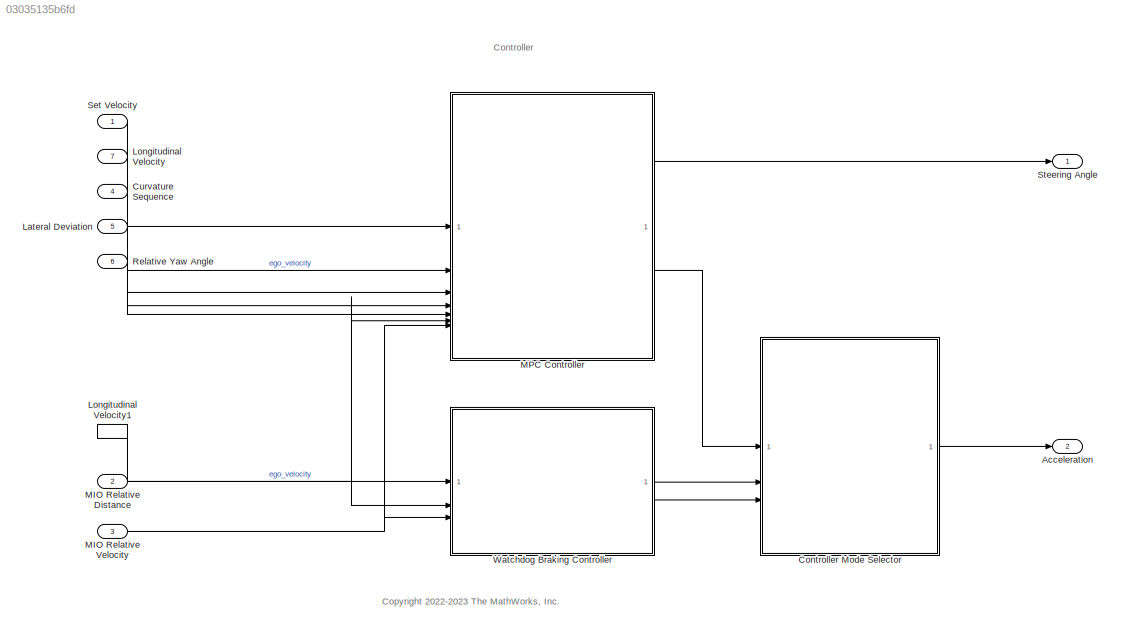
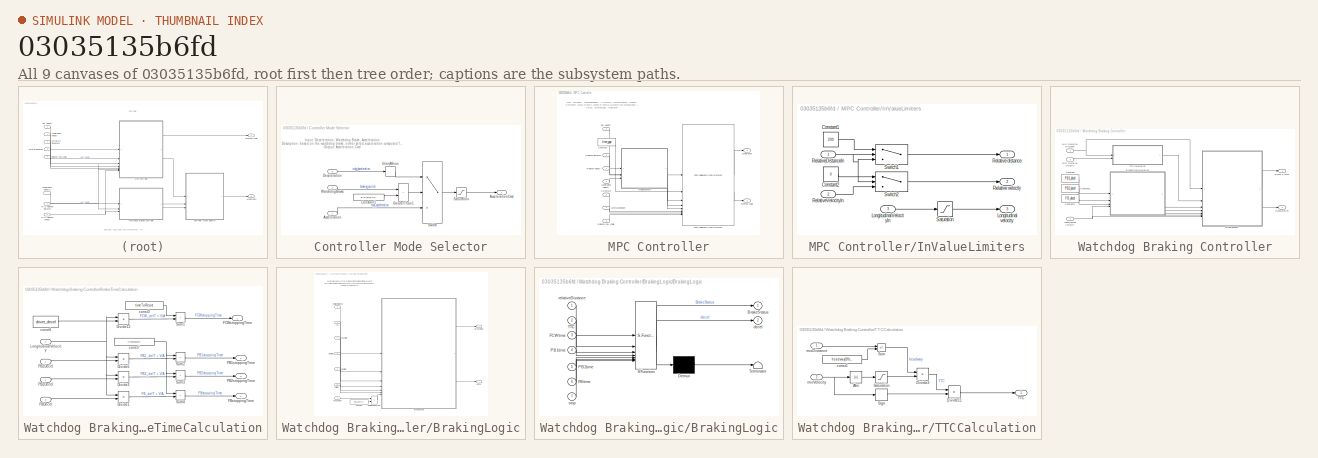
[diagram: thumbnail index - all 9 canvases of the model, root first then tree order]
MODEL slx_03035135b6fd
KIND model
CONFIG AbsTol = auto
CONFIG EnableMultiTasking = off
CONFIG FixedStep = auto
CONFIG MaxStep = auto
CONFIG MinStep = auto
CONFIG RelTol = 1e-3
CONFIG SampleTimeConstraint = Unconstrained
CONFIG SolverName = ode23tb
CONFIG StartTime = 0.0
CONFIG StopTime = inf
BLOCK [Outport] Acceleration
  Port = 2
  PortDimensions = 1
  SampleTime = Ts
  SamplingMode = Sample based
  SignalType = real
  VectorParamsAs1DForOutWhenUnconnected = off
BLOCK [SubSystem] Controller Mode Selector
BLOCK [Inport] Controller Mode Selector/Acceleration
BLOCK [Outport] Controller Mode Selector/AccelerationCmd
BLOCK [Constant] Controller Mode Selector/Constant1
  OutDataTypeStr = Enum: BrStatus
  Value = BrStatus.NoBrake
BLOCK [Inport] Controller Mode Selector/Deceleration
  Port = 3
BLOCK [RelationalOperator] Controller Mode Selector/GreaterThan1
  InputSameDT = off
  Operator = >
  RndMeth = Simplest
BLOCK [Saturate] Controller Mode Selector/Saturation
  AttributesFormatString = %<UpperLimit>\n%<LowerLimit>
  LowerLimit = max_dc
  UpperLimit = max_ac
BLOCK [Switch] Controller Mode Selector/Switch
  Criteria = u2 ~= 0
  InputSameDT = off
  SaturateOnIntegerOverflow = off
BLOCK [UnaryMinus] Controller Mode Selector/UnaryMinus
BLOCK [Inport] Controller Mode Selector/WatchdogBrake
  Port = 2
BLOCK [Inport] Curvature Sequence
  Port = 4
  PortDimensions = [PredictionHorizon 1]
BLOCK [Inport] Lateral Deviation
  Port = 5
BLOCK [Inport] Longitudinal Velocity
  Port = 7
  SampleTime = Ts
BLOCK [InportShadow] Longitudinal Velocity1
  Port = 7
  SampleTime = Ts
BLOCK [Inport] MIO Relative Distance
  Port = 2
BLOCK [Inport] MIO Relative Velocity
  Port = 3
BLOCK [SubSystem] MPC Controller
BLOCK [Outport] MPC Controller/Acceleration
  Port = 2
  VectorParamsAs1DForOutWhenUnconnected = off
BLOCK [Constant] MPC Controller/Constant
  Value = time_gap
BLOCK [Inport] MPC Controller/Curvature
  Port = 3
BLOCK [SubSystem] MPC Controller/InValueLimiters
BLOCK [Constant] MPC Controller/InValueLimiters/Constant1
  Value = 200
BLOCK [Constant] MPC Controller/InValueLimiters/Constant2
  Value = 0
BLOCK [Outport] MPC Controller/InValueLimiters/Longitudinal velocity
  Port = 3
BLOCK [Inport] MPC Controller/InValueLimiters/LongitudinalVelocityIn
  Port = 3
BLOCK [Outport] MPC Controller/InValueLimiters/Relative distance
BLOCK [Outport] MPC Controller/InValueLimiters/Relative velocity
  Port = 2
BLOCK [Inport] MPC Controller/InValueLimiters/RelativeDistanceIn
BLOCK [Inport] MPC Controller/InValueLimiters/RelativeVelocityIn
  Port = 2
BLOCK [Saturate] MPC Controller/InValueLimiters/Saturation
  LowerLimit = 0.00001
  UpperLimit = 100
BLOCK [Switch] MPC Controller/InValueLimiters/Switch1
  Criteria = u2 > Threshold
  InputSameDT = off
  SaturateOnIntegerOverflow = off
  Threshold = 1000
BLOCK [Switch] MPC Controller/InValueLimiters/Switch2
  Criteria = u2 > Threshold
  InputSameDT = off
  SaturateOnIntegerOverflow = off
  Threshold = 1000
BLOCK [Inport] MPC Controller/Lateral deviation
  Port = 4
BLOCK [Inport] MPC Controller/Longitudinal velocity
  Port = 2
BLOCK [Reference] MPC Controller/Path Following Control System  REF=mpcadaslib/Path Following Control System
  SourceBlock = mpcadaslib/Path Following Control System
  SourceType = Path following control (PFC) system
BLOCK [Inport] MPC Controller/Relative distance
  Port = 6
BLOCK [Inport] MPC Controller/Relative velocity
  Port = 7
BLOCK [Inport] MPC Controller/Relative yaw angle
  Port = 5
BLOCK [Inport] MPC Controller/Set velocity
BLOCK [Outport] MPC Controller/Steering Angle
  VectorParamsAs1DForOutWhenUnconnected = off
BLOCK [Inport] Relative Yaw Angle
  Port = 6
BLOCK [Inport] Set Velocity
BLOCK [Outport] Steering Angle
  PortDimensions = 1
  SampleTime = Ts
  SamplingMode = Sample based
  SignalType = real
  VectorParamsAs1DForOutWhenUnconnected = off
BLOCK [SubSystem] Watchdog Braking Controller
BLOCK [Outport] Watchdog Braking Controller/Brake Status
  VectorParamsAs1DForOutWhenUnconnected = off
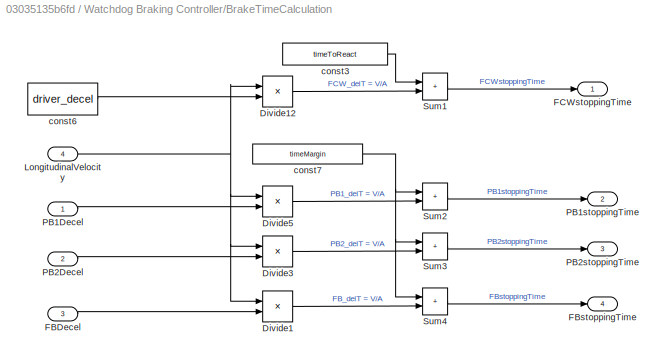
BLOCK [SubSystem] Watchdog Braking Controller/BrakeTimeCalculation
BLOCK [Product] Watchdog Braking Controller/BrakeTimeCalculation/Divide1
  Inputs = */
BLOCK [Product] Watchdog Braking Controller/BrakeTimeCalculation/Divide12
  Inputs = */
BLOCK [Product] Watchdog Braking Controller/BrakeTimeCalculation/Divide3
  Inputs = */
BLOCK [Product] Watchdog Braking Controller/BrakeTimeCalculation/Divide5
  Inputs = */
BLOCK [Inport] Watchdog Braking Controller/BrakeTimeCalculation/FBDecel
  Port = 3
BLOCK [Outport] Watchdog Braking Controller/BrakeTimeCalculation/FBstoppingTime
  Port = 4
BLOCK [Outport] Watchdog Braking Controller/BrakeTimeCalculation/FCWstoppingTime
BLOCK [Inport] Watchdog Braking Controller/BrakeTimeCalculation/LongitudinalVelocity
  Port = 4
BLOCK [Inport] Watchdog Braking Controller/BrakeTimeCalculation/PB1Decel
BLOCK [Outport] Watchdog Braking Controller/BrakeTimeCalculation/PB1stoppingTime
  Port = 2
BLOCK [Inport] Watchdog Braking Controller/BrakeTimeCalculation/PB2Decel
  Port = 2
BLOCK [Outport] Watchdog Braking Controller/BrakeTimeCalculation/PB2stoppingTime
  Port = 3
BLOCK [Sum] Watchdog Braking Controller/BrakeTimeCalculation/Sum1
  IconShape = rectangular
BLOCK [Sum] Watchdog Braking Controller/BrakeTimeCalculation/Sum2
  IconShape = rectangular
BLOCK [Sum] Watchdog Braking Controller/BrakeTimeCalculation/Sum3
  IconShape = rectangular
BLOCK [Sum] Watchdog Braking Controller/BrakeTimeCalculation/Sum4
  IconShape = rectangular
BLOCK [Constant] Watchdog Braking Controller/BrakeTimeCalculation/const3
  SampleTime = -1
  Value = timeToReact
BLOCK [Constant] Watchdog Braking Controller/BrakeTimeCalculation/const6
  SampleTime = -1
  Value = driver_decel
BLOCK [Constant] Watchdog Braking Controller/BrakeTimeCalculation/const7
  SampleTime = -1
  Value = timeMargin
BLOCK [SubSystem] Watchdog Braking Controller/BrakingLogic
BLOCK [Outport] Watchdog Braking Controller/BrakingLogic/BrakeStatus
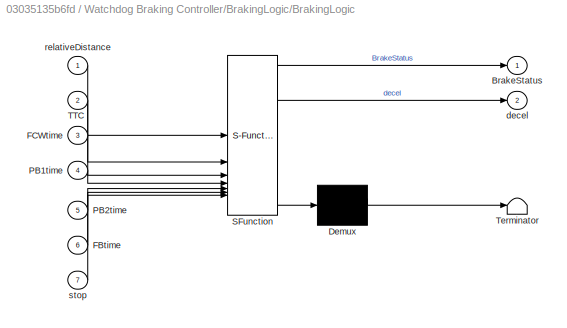
BLOCK [SubSystem] Watchdog Braking Controller/BrakingLogic/BrakingLogic
  ErrorFcn = Stateflow.Translate.translate
  PermitHierarchicalResolution = ExplicitOnly
  SFBlockType = Chart
  TreatAsAtomicUnit = on
BLOCK [Demux] Watchdog Braking Controller/BrakingLogic/BrakingLogic/ Demux 
  Outputs = 1
BLOCK [S-Function] Watchdog Braking Controller/BrakingLogic/BrakingLogic/ SFunction 
  EnableBusSupport = off
  FunctionName = sf_sfun
  PortCounts = [7 3]
  SFcnIsStateOwnerBlock = off
  SFunctionDeploymentMode = off
  Tag = Stateflow S-Function 8
BLOCK [Terminator] Watchdog Braking Controller/BrakingLogic/BrakingLogic/ Terminator 
BLOCK [Outport] Watchdog Braking Controller/BrakingLogic/BrakingLogic/BrakeStatus
  VectorParamsAs1DForOutWhenUnconnected = off
BLOCK [Inport] Watchdog Braking Controller/BrakingLogic/BrakingLogic/FBtime
  Port = 6
BLOCK [Inport] Watchdog Braking Controller/BrakingLogic/BrakingLogic/FCWtime
  Port = 3
BLOCK [Inport] Watchdog Braking Controller/BrakingLogic/BrakingLogic/PB1time
  Port = 4
BLOCK [Inport] Watchdog Braking Controller/BrakingLogic/BrakingLogic/PB2time
  Port = 5
BLOCK [Inport] Watchdog Braking Controller/BrakingLogic/BrakingLogic/TTC
  Port = 2
BLOCK [Outport] Watchdog Braking Controller/BrakingLogic/BrakingLogic/decel
  Port = 2
  VectorParamsAs1DForOutWhenUnconnected = off
BLOCK [Inport] Watchdog Braking Controller/BrakingLogic/BrakingLogic/relativeDistance
BLOCK [Inport] Watchdog Braking Controller/BrakingLogic/BrakingLogic/stop
  Port = 7
BLOCK [Constant] Watchdog Braking Controller/BrakingLogic/Constant
  AttributesFormatString = %<SampleTime>
  SampleTime = Ts
  Value = stopVelThreshold
BLOCK [Inport] Watchdog Braking Controller/BrakingLogic/FBtime
  Port = 6
BLOCK [Inport] Watchdog Braking Controller/BrakingLogic/FCWtime
  Port = 3
BLOCK [Inport] Watchdog Braking Controller/BrakingLogic/PB1time
  Port = 4
BLOCK [Inport] Watchdog Braking Controller/BrakingLogic/PB2time
  Port = 5
BLOCK [RelationalOperator] Watchdog Braking Controller/BrakingLogic/RelationalOperator
  InputSameDT = off
  Operator = <=
  RndMeth = Simplest
BLOCK [Inport] Watchdog Braking Controller/BrakingLogic/TTC
  Port = 2
BLOCK [Outport] Watchdog Braking Controller/BrakingLogic/decel
  Port = 2
BLOCK [Inport] Watchdog Braking Controller/BrakingLogic/longVelocity
  Port = 7
BLOCK [Inport] Watchdog Braking Controller/BrakingLogic/relativeDistance
BLOCK [Constant] Watchdog Braking Controller/Constant
  Value = PB1_decel
BLOCK [Constant] Watchdog Braking Controller/Constant1
  Value = PB2_decel
BLOCK [Constant] Watchdog Braking Controller/Constant2
  Value = FB_decel
BLOCK [Outport] Watchdog Braking Controller/Deceleration
  Port = 2
  VectorParamsAs1DForOutWhenUnconnected = off
BLOCK [Inport] Watchdog Braking Controller/Longitudinal Velocity
BLOCK [Inport] Watchdog Braking Controller/MIO Relative Distance
  Port = 2
BLOCK [Inport] Watchdog Braking Controller/MIO Relative Velocity
  Port = 3
BLOCK [SubSystem] Watchdog Braking Controller/TTCCalculation
BLOCK [Abs] Watchdog Braking Controller/TTCCalculation/Abs
  SaturateOnIntegerOverflow = off
BLOCK [Product] Watchdog Braking Controller/TTCCalculation/Divide11
  Inputs = **
BLOCK [Product] Watchdog Braking Controller/TTCCalculation/Divide3
  Inputs = */
BLOCK [Saturate] Watchdog Braking Controller/TTCCalculation/Saturation
  LowerLimit = 0.01
  UpperLimit = 100
BLOCK [Signum] Watchdog Braking Controller/TTCCalculation/Sign
BLOCK [Sum] Watchdog Braking Controller/TTCCalculation/Sum
  IconShape = rectangular
  Inputs = +-
BLOCK [Outport] Watchdog Braking Controller/TTCCalculation/TTC
  VectorParamsAs1DForOutWhenUnconnected = off
BLOCK [Constant] Watchdog Braking Controller/TTCCalculation/const1
  SampleTime = -1
  Value = headwayOffset
BLOCK [Inport] Watchdog Braking Controller/TTCCalculation/mioDistance
BLOCK [Inport] Watchdog Braking Controller/TTCCalculation/mioVelocity
  Port = 2
ANNOTATION (root): Controller
ANNOTATION (root): <copyright redacted>
ANNOTATION Controller Mode Selector: Input: Deceleration, Watchdog Brake, Acceleration Description: based on the watchdog brake, either select acceleration computed from the controller or the deceleration from the watchdog controller Output: Acceleration Cmd
ANNOTATION MPC Controller: Input: SetVelocity, LongitudinalVelocity, Curvature, LateralDeviation, RelativeYawAngle, RelativeDistanc, RelativeVelocity Description: based on inputs, decide on optimal Accerlation and SteeringAngle to output Output: SteeringAngle, Acceleration
ANNOTATION Watchdog Braking Controller/BrakingLogic: Input: relativeDistance, TTC, FCWtime, PB1time, PB2time, FBtime, longVelocity Description: as time to collision gets shorter, request deceleration and signal the braking status. 4 Levels are identified warning, partial braking 1/2 and full braking. Output: BrakeStatus, decel
LINE Controller Mode Selector/Acceleration:1 -> Controller Mode Selector/Switch:3
LINE Controller Mode Selector/Constant1:1 -> Controller Mode Selector/GreaterThan1:2
LINE Controller Mode Selector/Deceleration:1 -> Controller Mode Selector/UnaryMinus:1
LINE Controller Mode Selector/GreaterThan1:1 -> Controller Mode Selector/Switch:2
LINE Controller Mode Selector/Saturation:1 -> Controller Mode Selector/AccelerationCmd:1
LINE Controller Mode Selector/Switch:1 -> Controller Mode Selector/Saturation:1
LINE Controller Mode Selector/UnaryMinus:1 -> Controller Mode Selector/Switch:1
LINE Controller Mode Selector/WatchdogBrake:1 -> Controller Mode Selector/GreaterThan1:1
LINE Controller Mode Selector:1 -> Acceleration:1
LINE Curvature Sequence:1 -> MPC Controller:3
LINE Lateral Deviation:1 -> MPC Controller:4
LINE Longitudinal Velocity1:1 -> Watchdog Braking Controller:1
LINE Longitudinal Velocity:1 -> MPC Controller:2
NET MIO Relative Distance:1 -> MPC Controller:6, Watchdog Braking Controller:2
NET MIO Relative Velocity:1 -> MPC Controller:7, Watchdog Braking Controller:3
LINE MPC Controller/Constant:1 -> MPC Controller/Path Following Control System:2
LINE MPC Controller/Curvature:1 -> MPC Controller/Path Following Control System:6
LINE MPC Controller/InValueLimiters/Constant1:1 -> MPC Controller/InValueLimiters/Switch1:1
LINE MPC Controller/InValueLimiters/Constant2:1 -> MPC Controller/InValueLimiters/Switch2:1
LINE MPC Controller/InValueLimiters/LongitudinalVelocityIn:1 -> MPC Controller/InValueLimiters/Saturation:1
NET MPC Controller/InValueLimiters/RelativeDistanceIn:1 -> MPC Controller/InValueLimiters/Switch1:2, MPC Controller/InValueLimiters/Switch1:3, MPC Controller/InValueLimiters/Switch2:2
LINE MPC Controller/InValueLimiters/RelativeVelocityIn:1 -> MPC Controller/InValueLimiters/Switch2:3
LINE MPC Controller/InValueLimiters/Saturation:1 -> MPC Controller/InValueLimiters/Longitudinal velocity:1
LINE MPC Controller/InValueLimiters/Switch1:1 -> MPC Controller/InValueLimiters/Relative distance:1
LINE MPC Controller/InValueLimiters/Switch2:1 -> MPC Controller/InValueLimiters/Relative velocity:1
LINE MPC Controller/InValueLimiters:1 -> MPC Controller/Path Following Control System:3
LINE MPC Controller/InValueLimiters:2 -> MPC Controller/Path Following Control System:4
LINE MPC Controller/InValueLimiters:3 -> MPC Controller/Path Following Control System:5
LINE MPC Controller/Lateral deviation:1 -> MPC Controller/Path Following Control System:7
LINE MPC Controller/Longitudinal velocity:1 -> MPC Controller/InValueLimiters:3
LINE MPC Controller/Path Following Control System:1 -> MPC Controller/Acceleration:1
LINE MPC Controller/Path Following Control System:2 -> MPC Controller/Steering Angle:1
LINE MPC Controller/Relative distance:1 -> MPC Controller/InValueLimiters:1
LINE MPC Controller/Relative velocity:1 -> MPC Controller/InValueLimiters:2
LINE MPC Controller/Relative yaw angle:1 -> MPC Controller/Path Following Control System:8
LINE MPC Controller/Set velocity:1 -> MPC Controller/Path Following Control System:1
LINE MPC Controller:1 -> Steering Angle:1
LINE MPC Controller:2 -> Controller Mode Selector:1
LINE Relative Yaw Angle:1 -> MPC Controller:5
LINE Set Velocity:1 -> MPC Controller:1
LINE Watchdog Braking Controller/BrakeTimeCalculation/Divide12:1 -> Watchdog Braking Controller/BrakeTimeCalculation/Sum1:2
LINE Watchdog Braking Controller/BrakeTimeCalculation/Divide1:1 -> Watchdog Braking Controller/BrakeTimeCalculation/Sum4:2
LINE Watchdog Braking Controller/BrakeTimeCalculation/Divide3:1 -> Watchdog Braking Controller/BrakeTimeCalculation/Sum3:2
LINE Watchdog Braking Controller/BrakeTimeCalculation/Divide5:1 -> Watchdog Braking Controller/BrakeTimeCalculation/Sum2:2
LINE Watchdog Braking Controller/BrakeTimeCalculation/FBDecel:1 -> Watchdog Braking Controller/BrakeTimeCalculation/Divide1:2
NET Watchdog Braking Controller/BrakeTimeCalculation/LongitudinalVelocity:1 -> Watchdog Braking Controller/BrakeTimeCalculation/Divide12:1, Watchdog Braking Controller/BrakeTimeCalculation/Divide1:1, Watchdog Braking Controller/BrakeTimeCalculation/Divide3:1, Watchdog Braking Controller/BrakeTimeCalculation/Divide5:1
LINE Watchdog Braking Controller/BrakeTimeCalculation/PB1Decel:1 -> Watchdog Braking Controller/BrakeTimeCalculation/Divide5:2
LINE Watchdog Braking Controller/BrakeTimeCalculation/PB2Decel:1 -> Watchdog Braking Controller/BrakeTimeCalculation/Divide3:2
LINE Watchdog Braking Controller/BrakeTimeCalculation/Sum1:1 -> Watchdog Braking Controller/BrakeTimeCalculation/FCWstoppingTime:1
LINE Watchdog Braking Controller/BrakeTimeCalculation/Sum2:1 -> Watchdog Braking Controller/BrakeTimeCalculation/PB1stoppingTime:1
LINE Watchdog Braking Controller/BrakeTimeCalculation/Sum3:1 -> Watchdog Braking Controller/BrakeTimeCalculation/PB2stoppingTime:1
LINE Watchdog Braking Controller/BrakeTimeCalculation/Sum4:1 -> Watchdog Braking Controller/BrakeTimeCalculation/FBstoppingTime:1
LINE Watchdog Braking Controller/BrakeTimeCalculation/const3:1 -> Watchdog Braking Controller/BrakeTimeCalculation/Sum1:1
LINE Watchdog Braking Controller/BrakeTimeCalculation/const6:1 -> Watchdog Braking Controller/BrakeTimeCalculation/Divide12:2
NET Watchdog Braking Controller/BrakeTimeCalculation/const7:1 -> Watchdog Braking Controller/BrakeTimeCalculation/Sum2:1, Watchdog Braking Controller/BrakeTimeCalculation/Sum3:1, Watchdog Braking Controller/BrakeTimeCalculation/Sum4:1
LINE Watchdog Braking Controller/BrakeTimeCalculation:1 -> Watchdog Braking Controller/BrakingLogic:3
LINE Watchdog Braking Controller/BrakeTimeCalculation:2 -> Watchdog Braking Controller/BrakingLogic:4
LINE Watchdog Braking Controller/BrakeTimeCalculation:3 -> Watchdog Braking Controller/BrakingLogic:5
LINE Watchdog Braking Controller/BrakeTimeCalculation:4 -> Watchdog Braking Controller/BrakingLogic:6
LINE Watchdog Braking Controller/BrakingLogic/BrakingLogic:1 -> Watchdog Braking Controller/BrakingLogic/BrakeStatus:1
LINE Watchdog Braking Controller/BrakingLogic/BrakingLogic:2 -> Watchdog Braking Controller/BrakingLogic/decel:1
LINE Watchdog Braking Controller/BrakingLogic/Constant:1 -> Watchdog Braking Controller/BrakingLogic/RelationalOperator:2
LINE Watchdog Braking Controller/BrakingLogic/FBtime:1 -> Watchdog Braking Controller/BrakingLogic/BrakingLogic:6
LINE Watchdog Braking Controller/BrakingLogic/FCWtime:1 -> Watchdog Braking Controller/BrakingLogic/BrakingLogic:3
LINE Watchdog Braking Controller/BrakingLogic/PB1time:1 -> Watchdog Braking Controller/BrakingLogic/BrakingLogic:4
LINE Watchdog Braking Controller/BrakingLogic/PB2time:1 -> Watchdog Braking Controller/BrakingLogic/BrakingLogic:5
LINE Watchdog Braking Controller/BrakingLogic/RelationalOperator:1 -> Watchdog Braking Controller/BrakingLogic/BrakingLogic:7
LINE Watchdog Braking Controller/BrakingLogic/TTC:1 -> Watchdog Braking Controller/BrakingLogic/BrakingLogic:2
LINE Watchdog Braking Controller/BrakingLogic/longVelocity:1 -> Watchdog Braking Controller/BrakingLogic/RelationalOperator:1
LINE Watchdog Braking Controller/BrakingLogic/relativeDistance:1 -> Watchdog Braking Controller/BrakingLogic/BrakingLogic:1
LINE Watchdog Braking Controller/BrakingLogic:1 -> Watchdog Braking Controller/Brake Status:1
LINE Watchdog Braking Controller/BrakingLogic:2 -> Watchdog Braking Controller/Deceleration:1
LINE Watchdog Braking Controller/Constant1:1 -> Watchdog Braking Controller/BrakeTimeCalculation:2
LINE Watchdog Braking Controller/Constant2:1 -> Watchdog Braking Controller/BrakeTimeCalculation:3
LINE Watchdog Braking Controller/Constant:1 -> Watchdog Braking Controller/BrakeTimeCalculation:1
NET Watchdog Braking Controller/Longitudinal Velocity:1 -> Watchdog Braking Controller/BrakeTimeCalculation:4, Watchdog Braking Controller/BrakingLogic:7
NET Watchdog Braking Controller/MIO Relative Distance:1 -> Watchdog Braking Controller/BrakingLogic:1, Watchdog Braking Controller/TTCCalculation:1
LINE Watchdog Braking Controller/MIO Relative Velocity:1 -> Watchdog Braking Controller/TTCCalculation:2
LINE Watchdog Braking Controller/TTCCalculation/Abs:1 -> Watchdog Braking Controller/TTCCalculation/Saturation:1
LINE Watchdog Braking Controller/TTCCalculation/Divide11:1 -> Watchdog Braking Controller/TTCCalculation/TTC:1
LINE Watchdog Braking Controller/TTCCalculation/Divide3:1 -> Watchdog Braking Controller/TTCCalculation/Divide11:1
LINE Watchdog Braking Controller/TTCCalculation/Saturation:1 -> Watchdog Braking Controller/TTCCalculation/Divide3:2
LINE Watchdog Braking Controller/TTCCalculation/Sign:1 -> Watchdog Braking Controller/TTCCalculation/Divide11:2
LINE Watchdog Braking Controller/TTCCalculation/Sum:1 -> Watchdog Braking Controller/TTCCalculation/Divide3:1
LINE Watchdog Braking Controller/TTCCalculation/const1:1 -> Watchdog Braking Controller/TTCCalculation/Sum:2
LINE Watchdog Braking Controller/TTCCalculation/mioDistance:1 -> Watchdog Braking Controller/TTCCalculation/Sum:1
NET Watchdog Braking Controller/TTCCalculation/mioVelocity:1 -> Watchdog Braking Controller/TTCCalculation/Abs:1, Watchdog Braking Controller/TTCCalculation/Sign:1
LINE Watchdog Braking Controller/TTCCalculation:1 -> Watchdog Braking Controller/BrakingLogic:2
LINE Watchdog Braking Controller:1 -> Controller Mode Selector:2
LINE Watchdog Braking Controller:2 -> Controller Mode Selector:3
note: NET lines group one-source signal fan-out (src -> all destinations, sorted); 1:1 wires keep LINE
CHART Watchdog Braking Controller/BrakingLogic/BrakingLogic states=5 transitions=16
  STATE_LABEL 'Default\nentry: \n BrakeStatus = BrStatus.NoBrake;\n decel = Default_decel;'
  STATE_LABEL 'FCW\nentry: \n BrakeStatus = BrStatus.NoBrake;\n decel = Default_decel;\n'
  STATE_LABEL 'Partial_Braking1\nentry: \n BrakeStatus = BrStatus.PB1Brake;\n decel = PB1_decel;\n'
  STATE_LABEL 'Partial_Braking2\nentry:  \n BrakeStatus =BrStatus.PB2Brake;\n decel = PB2_decel;\n'
  STATE_LABEL 'Full_Braking\nentry: \n BrakeStatus = BrStatus.FBrake;\n decel = FB_decel;\n'
CHART  states=0 transitions=0
